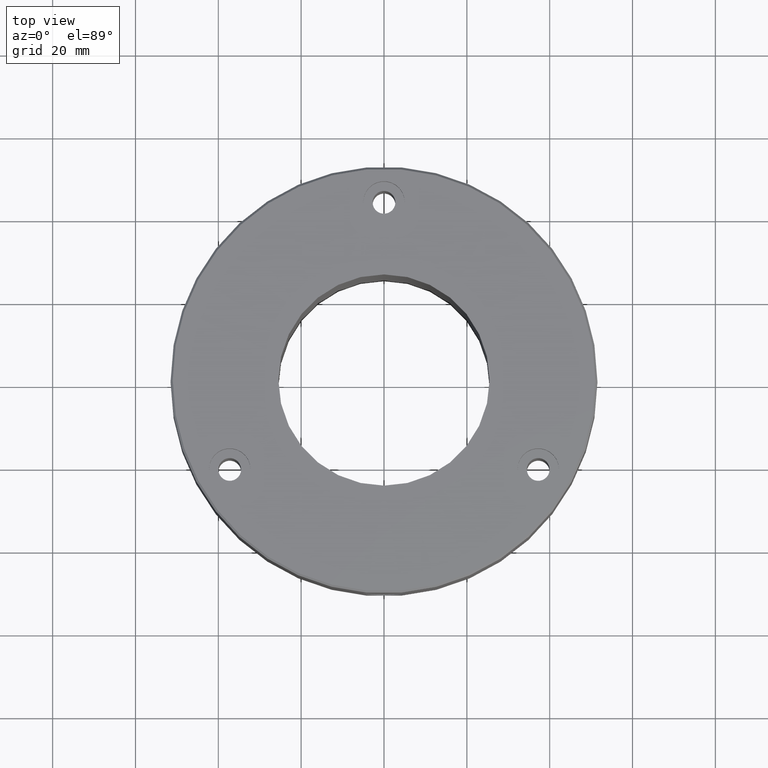
[diagram: clean part render]
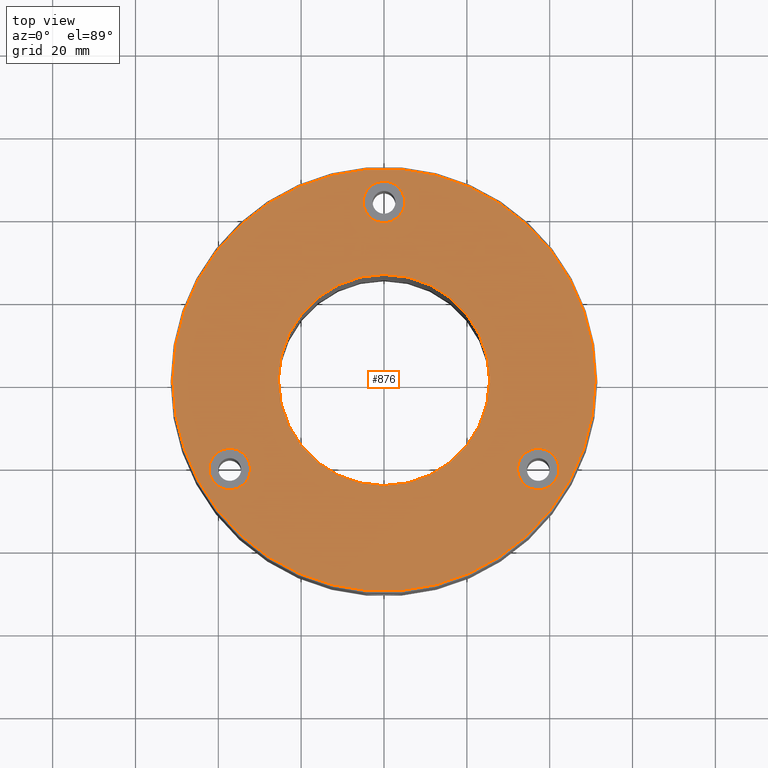
[diagram: same view with one face highlighted and labeled with its STEP entity id]
A machine part, top view. The second image highlights one B-rep face of the part: STEP entity #876.
In plain terms, the highlighted planar face has unit normal (0, -0, 1).
Its self-contained STEP definition (entity closure, byte-faithful):
#9 = ORIENTED_EDGE ( 'NONE', *, *, #438, .F. ) ;
#16 = VERTEX_POINT ( 'NONE', #843 ) ;
#41 = CARTESIAN_POINT ( 'NONE',  ( 37.23909236273076573, -21.50000000000015987, 0.000000000000000000 ) ) ;
#48 = CIRCLE ( 'NONE', #386, 5.000000000000004441 ) ;
#76 = CARTESIAN_POINT ( 'NONE',  ( 5.000000000000000888, 43.00000000000000000, 0.000000000000000000 ) ) ;
#77 = CARTESIAN_POINT ( 'NONE',  ( 0.000000000000000000, 0.000000000000000000, 0.000000000000000000 ) ) ;
#80 = CARTESIAN_POINT ( 'NONE',  ( 25.50000000000000000, 3.122849337825750222E-15, 0.000000000000000000 ) ) ;
#82 = CARTESIAN_POINT ( 'NONE',  ( 42.23909236273076573, -21.50000000000015987, 0.000000000000000000 ) ) ;
#86 = EDGE_CURVE ( 'NONE', #406, #904, #1096, .T. ) ;
#95 = FACE_BOUND ( 'NONE', #206, .T. ) ;
#106 = VERTEX_POINT ( 'NONE', #433 ) ;
#118 = CARTESIAN_POINT ( 'NONE',  ( -25.50000000000000000, 0.000000000000000000, 0.000000000000000000 ) ) ;
#119 = VERTEX_POINT ( 'NONE', #714 ) ;
#138 = CARTESIAN_POINT ( 'NONE',  ( -37.23909236273090073, -21.49999999999991118, 0.000000000000000000 ) ) ;
#144 = EDGE_CURVE ( 'NONE', #582, #283, #48, .T. ) ;
#152 = CARTESIAN_POINT ( 'NONE',  ( 0.000000000000000000, 0.000000000000000000, 0.000000000000000000 ) ) ;
#186 = EDGE_LOOP ( 'NONE', ( #329, #880 ) ) ;
#191 = DIRECTION ( 'NONE',  ( -0.000000000000000000, -0.000000000000000000, 1.000000000000000000 ) ) ;
#197 = PLANE ( 'NONE',  #632 ) ;
#201 = CIRCLE ( 'NONE', #1073, 51.00000000000001421 ) ;
#206 = EDGE_LOOP ( 'NONE', ( #544, #492 ) ) ;
#211 = DIRECTION ( 'NONE',  ( 1.000000000000000000, 0.000000000000000000, 0.000000000000000000 ) ) ;
#233 = DIRECTION ( 'NONE',  ( 1.000000000000000000, 0.000000000000000000, 0.000000000000000000 ) ) ;
#237 = DIRECTION ( 'NONE',  ( 0.000000000000000000, 0.000000000000000000, -1.000000000000000000 ) ) ;
#251 = DIRECTION ( 'NONE',  ( -0.000000000000000000, -0.000000000000000000, 1.000000000000000000 ) ) ;
#265 = DIRECTION ( 'NONE',  ( 1.000000000000000000, 0.000000000000000000, 0.000000000000000000 ) ) ;
#283 = VERTEX_POINT ( 'NONE', #82 ) ;
#285 = AXIS2_PLACEMENT_3D ( 'NONE', #366, #191, #1041 ) ;
#304 = EDGE_LOOP ( 'NONE', ( #973, #702 ) ) ;
#307 = CIRCLE ( 'NONE', #1102, 51.00000000000001421 ) ;
#329 = ORIENTED_EDGE ( 'NONE', *, *, #675, .F. ) ;
#339 = DIRECTION ( 'NONE',  ( 1.000000000000000000, 0.000000000000000000, 0.000000000000000000 ) ) ;
#350 = CIRCLE ( 'NONE', #758, 5.000000000000004441 ) ;
#352 = VERTEX_POINT ( 'NONE', #460 ) ;
#361 = DIRECTION ( 'NONE',  ( 1.000000000000000000, 0.000000000000000000, 0.000000000000000000 ) ) ;
#362 = CIRCLE ( 'NONE', #434, 5.000000000000004441 ) ;
#366 = CARTESIAN_POINT ( 'NONE',  ( 0.000000000000000000, 43.00000000000000000, 0.000000000000000000 ) ) ;
#386 = AXIS2_PLACEMENT_3D ( 'NONE', #41, #522, #1178 ) ;
#393 = CIRCLE ( 'NONE', #614, 5.000000000000000888 ) ;
#405 = CARTESIAN_POINT ( 'NONE',  ( 32.23909236273075862, -21.50000000000015987, 0.000000000000000000 ) ) ;
#406 = VERTEX_POINT ( 'NONE', #118 ) ;
#423 = DIRECTION ( 'NONE',  ( -0.000000000000000000, -0.000000000000000000, 1.000000000000000000 ) ) ;
#427 = EDGE_CURVE ( 'NONE', #106, #119, #201, .T. ) ;
#433 = CARTESIAN_POINT ( 'NONE',  ( 51.00000000000001421, 6.276314845630186598E-15, 0.000000000000000000 ) ) ;
#434 = AXIS2_PLACEMENT_3D ( 'NONE', #138, #441, #233 ) ;
#438 = EDGE_CURVE ( 'NONE', #352, #860, #362, .T. ) ;
#441 = DIRECTION ( 'NONE',  ( -0.000000000000000000, -0.000000000000000000, 1.000000000000000000 ) ) ;
#447 = CARTESIAN_POINT ( 'NONE',  ( 0.000000000000000000, 0.000000000000000000, 0.000000000000000000 ) ) ;
#448 = AXIS2_PLACEMENT_3D ( 'NONE', #705, #237, #1088 ) ;
#460 = CARTESIAN_POINT ( 'NONE',  ( -32.23909236273090073, -21.49999999999991118, 0.000000000000000000 ) ) ;
#469 = ORIENTED_EDGE ( 'NONE', *, *, #840, .F. ) ;
#482 = DIRECTION ( 'NONE',  ( 0.000000000000000000, 0.000000000000000000, -1.000000000000000000 ) ) ;
#492 = ORIENTED_EDGE ( 'NONE', *, *, #692, .T. ) ;
#522 = DIRECTION ( 'NONE',  ( -0.000000000000000000, -0.000000000000000000, 1.000000000000000000 ) ) ;
#544 = ORIENTED_EDGE ( 'NONE', *, *, #86, .T. ) ;
#558 = DIRECTION ( 'NONE',  ( 0.000000000000000000, -0.000000000000000000, 1.000000000000000000 ) ) ;
#582 = VERTEX_POINT ( 'NONE', #405 ) ;
#596 = ORIENTED_EDGE ( 'NONE', *, *, #1135, .F. ) ;
#609 = DIRECTION ( 'NONE',  ( -0.000000000000000000, -0.000000000000000000, 1.000000000000000000 ) ) ;
#614 = AXIS2_PLACEMENT_3D ( 'NONE', #1243, #251, #361 ) ;
#632 = AXIS2_PLACEMENT_3D ( 'NONE', #662, #558, #265 ) ;
#644 = EDGE_CURVE ( 'NONE', #860, #352, #999, .T. ) ;
#662 = CARTESIAN_POINT ( 'NONE',  ( 0.000000000000000000, 0.000000000000000000, 0.000000000000000000 ) ) ;
#675 = EDGE_CURVE ( 'NONE', #283, #582, #350, .T. ) ;
#686 = FACE_BOUND ( 'NONE', #888, .T. ) ;
#692 = EDGE_CURVE ( 'NONE', #904, #406, #1101, .T. ) ;
#699 = CIRCLE ( 'NONE', #285, 5.000000000000000888 ) ;
#700 = VERTEX_POINT ( 'NONE', #76 ) ;
#702 = ORIENTED_EDGE ( 'NONE', *, *, #427, .T. ) ;
#705 = CARTESIAN_POINT ( 'NONE',  ( 0.000000000000000000, 0.000000000000000000, 0.000000000000000000 ) ) ;
#714 = CARTESIAN_POINT ( 'NONE',  ( -51.00000000000001421, 0.000000000000000000, 0.000000000000000000 ) ) ;
#758 = AXIS2_PLACEMENT_3D ( 'NONE', #913, #423, #211 ) ;
#760 = FACE_BOUND ( 'NONE', #1028, .T. ) ;
#789 = DIRECTION ( 'NONE',  ( -1.000000000000000000, 0.000000000000000000, 0.000000000000000000 ) ) ;
#817 = ORIENTED_EDGE ( 'NONE', *, *, #644, .F. ) ;
#840 = EDGE_CURVE ( 'NONE', #16, #700, #699, .T. ) ;
#843 = CARTESIAN_POINT ( 'NONE',  ( -5.000000000000000888, 43.00000000000000000, 0.000000000000000000 ) ) ;
#854 = DIRECTION ( 'NONE',  ( -0.000000000000000000, -0.000000000000000000, 1.000000000000000000 ) ) ;
#860 = VERTEX_POINT ( 'NONE', #1252 ) ;
#876 = ADVANCED_FACE ( 'NONE', ( #760, #1144, #686, #95, #1232 ), #197, .T. ) ;
#880 = ORIENTED_EDGE ( 'NONE', *, *, #144, .F. ) ;
#881 = AXIS2_PLACEMENT_3D ( 'NONE', #1009, #1095, #1180 ) ;
#888 = EDGE_LOOP ( 'NONE', ( #596, #469 ) ) ;
#904 = VERTEX_POINT ( 'NONE', #80 ) ;
#913 = CARTESIAN_POINT ( 'NONE',  ( 37.23909236273076573, -21.50000000000015987, 0.000000000000000000 ) ) ;
#926 = AXIS2_PLACEMENT_3D ( 'NONE', #447, #482, #789 ) ;
#973 = ORIENTED_EDGE ( 'NONE', *, *, #1146, .T. ) ;
#999 = CIRCLE ( 'NONE', #881, 5.000000000000004441 ) ;
#1009 = CARTESIAN_POINT ( 'NONE',  ( -37.23909236273090073, -21.49999999999991118, 0.000000000000000000 ) ) ;
#1028 = EDGE_LOOP ( 'NONE', ( #9, #817 ) ) ;
#1041 = DIRECTION ( 'NONE',  ( 1.000000000000000000, 0.000000000000000000, 0.000000000000000000 ) ) ;
#1073 = AXIS2_PLACEMENT_3D ( 'NONE', #152, #609, #339 ) ;
#1088 = DIRECTION ( 'NONE',  ( -1.000000000000000000, 0.000000000000000000, 0.000000000000000000 ) ) ;
#1095 = DIRECTION ( 'NONE',  ( -0.000000000000000000, -0.000000000000000000, 1.000000000000000000 ) ) ;
#1096 = CIRCLE ( 'NONE', #448, 25.50000000000000000 ) ;
#1101 = CIRCLE ( 'NONE', #926, 25.50000000000000000 ) ;
#1102 = AXIS2_PLACEMENT_3D ( 'NONE', #77, #854, #1149 ) ;
#1135 = EDGE_CURVE ( 'NONE', #700, #16, #393, .T. ) ;
#1144 = FACE_BOUND ( 'NONE', #186, .T. ) ;
#1146 = EDGE_CURVE ( 'NONE', #119, #106, #307, .T. ) ;
#1149 = DIRECTION ( 'NONE',  ( 1.000000000000000000, 0.000000000000000000, 0.000000000000000000 ) ) ;
#1178 = DIRECTION ( 'NONE',  ( 1.000000000000000000, 0.000000000000000000, 0.000000000000000000 ) ) ;
#1180 = DIRECTION ( 'NONE',  ( 1.000000000000000000, 0.000000000000000000, 0.000000000000000000 ) ) ;
#1232 = FACE_OUTER_BOUND ( 'NONE', #304, .T. ) ;
#1243 = CARTESIAN_POINT ( 'NONE',  ( 0.000000000000000000, 43.00000000000000000, 0.000000000000000000 ) ) ;
#1252 = CARTESIAN_POINT ( 'NONE',  ( -42.23909236273090784, -21.49999999999991118, 0.000000000000000000 ) ) ;